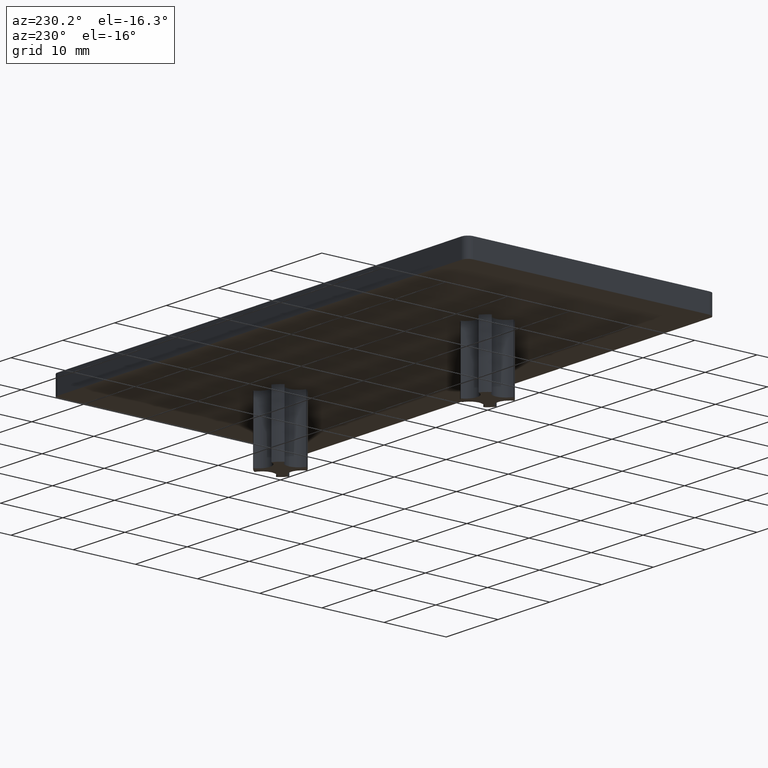
[diagram: clean part render]
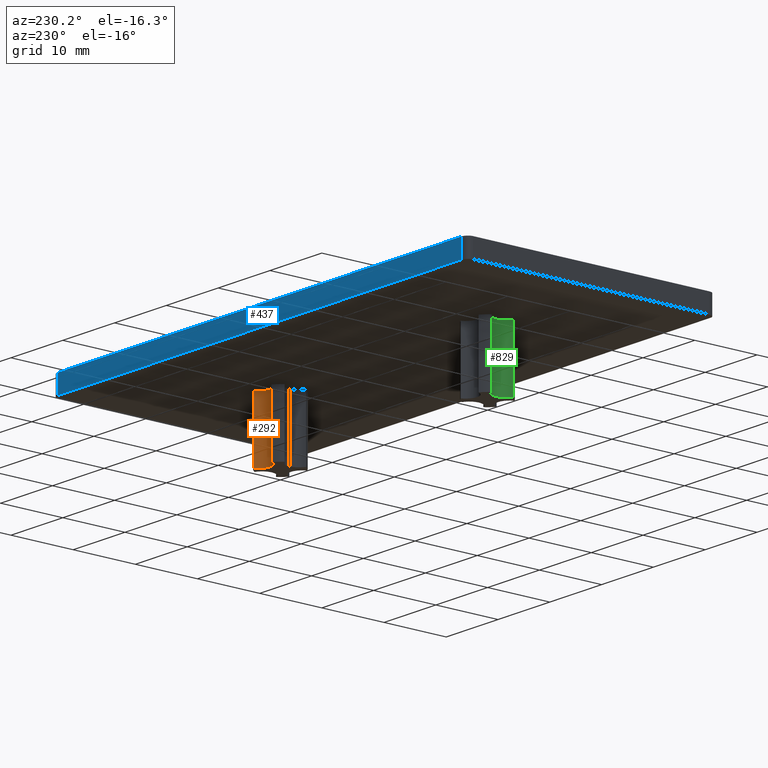
[diagram: same view with three faces highlighted in distinct colors, each labeled with its STEP entity id]
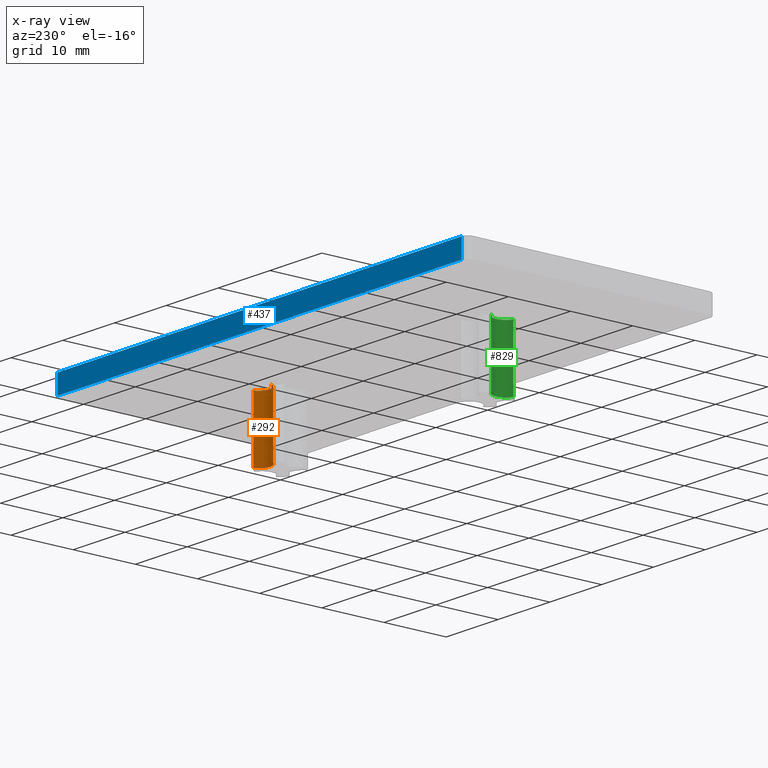
[diagram: x-ray of the same camera — body ghosted, the three highlighted faces saturated]
A machine part, auxiliary view with three faces highlighted in distinct colors.
The next image is the same camera in x-ray (body ghosted, the three faces saturated) — at least one of them is partly hidden behind the body in this view.
Their STEP definitions:

[orange] entity #292 — the highlighted cylindrical surface (edge-blend (fillet) strip) has radius 1.85 mm, axis along (0, 0, 1).
#232=CARTESIAN_POINT('',(21.734819875376125,22.894999999999996,-2.664535E-015));
#233=VERTEX_POINT('',#232);
#242=CARTESIAN_POINT('',(21.734819875376125,22.894999999999996,-10.000000000000004));
#243=VERTEX_POINT('',#242);
#251=CARTESIAN_POINT('',(21.734819875376125,22.894999999999996,-10.000000000000004));
#252=DIRECTION('',(0.0,0.0,1.0));
#253=VECTOR('',#252,10.0);
#254=LINE('',#251,#253);
#255=EDGE_CURVE('',#243,#233,#254,.T.);
#260=CARTESIAN_POINT('',(20.000000000000011,23.537572953056703,-10.000000010000004));
#261=DIRECTION('',(0.0,1.224647E-016,1.0));
#262=DIRECTION('',(1.0,0.0,0.0));
#263=AXIS2_PLACEMENT_3D('',#260,#261,#262);
#264=CYLINDRICAL_SURFACE('',#263,1.850000000000004);
#265=CARTESIAN_POINT('',(18.265180124623893,22.894999999999989,-2.664535E-015));
#266=VERTEX_POINT('',#265);
#267=CARTESIAN_POINT('',(20.000000000000011,23.537572953056703,-2.664535E-015));
#268=DIRECTION('',(0.0,-1.224647E-016,-1.0));
#269=DIRECTION('',(0.0,1.0,-1.224647E-016));
#270=AXIS2_PLACEMENT_3D('',#267,#268,#269);
#271=CIRCLE('',#270,1.850000000000004);
#272=EDGE_CURVE('',#233,#266,#271,.T.);
#273=ORIENTED_EDGE('',*,*,#272,.F.);
#274=ORIENTED_EDGE('',*,*,#255,.F.);
#275=CARTESIAN_POINT('',(18.265180124623893,22.894999999999989,-10.000000000000004));
#276=VERTEX_POINT('',#275);
#277=CARTESIAN_POINT('',(20.000000000000011,23.537572953056703,-10.000000000000004));
#278=DIRECTION('',(0.0,-1.224647E-016,-1.0));
#279=DIRECTION('',(0.0,1.0,-1.224647E-016));
#280=AXIS2_PLACEMENT_3D('',#277,#278,#279);
#281=CIRCLE('',#280,1.850000000000004);
#282=EDGE_CURVE('',#243,#276,#281,.T.);
#283=ORIENTED_EDGE('',*,*,#282,.T.);
#284=CARTESIAN_POINT('',(18.265180124623893,22.894999999999989,-10.000000000000004));
#285=DIRECTION('',(0.0,0.0,1.0));
#286=VECTOR('',#285,10.0);
#287=LINE('',#284,#286);
#288=EDGE_CURVE('',#276,#266,#287,.T.);
#289=ORIENTED_EDGE('',*,*,#288,.T.);
#290=EDGE_LOOP('',(#273,#274,#283,#289));
#291=FACE_OUTER_BOUND('',#290,.T.);
#292=ADVANCED_FACE('',(#291),#264,.F.);

[blue] entity #437 — the highlighted planar face has unit normal (0, -1, 0).
#398=CARTESIAN_POINT('',(-42.899999999999970,39.999999999999993,3.149999999999996));
#399=DIRECTION('',(0.0,-1.0,0.0));
#400=DIRECTION('',(0.0,0.0,-1.0));
#401=AXIS2_PLACEMENT_3D('',#398,#399,#400);
#402=PLANE('',#401);
#403=CARTESIAN_POINT('',(-38.999999999999972,39.999999999999993,2.999999999999995));
#404=VERTEX_POINT('',#403);
#405=CARTESIAN_POINT('',(39.000000000000014,39.999999999999993,2.999999999999995));
#406=VERTEX_POINT('',#405);
#407=CARTESIAN_POINT('',(-38.999999999999972,39.999999999999993,2.999999999999995));
#408=DIRECTION('',(1.0,0.0,0.0));
#409=VECTOR('',#408,77.999999999999986);
#410=LINE('',#407,#409);
#411=EDGE_CURVE('',#404,#406,#410,.T.);
#412=ORIENTED_EDGE('',*,*,#411,.T.);
#413=CARTESIAN_POINT('',(39.000000000000014,39.999999999999993,-4.884981E-015));
#414=VERTEX_POINT('',#413);
#415=CARTESIAN_POINT('',(39.000000000000014,39.999999999999993,2.999999999999995));
#416=DIRECTION('',(0.0,0.0,-1.0));
#417=VECTOR('',#416,3.0);
#418=LINE('',#415,#417);
#419=EDGE_CURVE('',#406,#414,#418,.T.);
#420=ORIENTED_EDGE('',*,*,#419,.T.);
#421=CARTESIAN_POINT('',(-38.999999999999972,39.999999999999993,-4.884981E-015));
#422=VERTEX_POINT('',#421);
#423=CARTESIAN_POINT('',(-38.999999999999972,39.999999999999993,-4.884981E-015));
#424=DIRECTION('',(1.0,0.0,0.0));
#425=VECTOR('',#424,77.999999999999986);
#426=LINE('',#423,#425);
#427=EDGE_CURVE('',#422,#414,#426,.T.);
#428=ORIENTED_EDGE('',*,*,#427,.F.);
#429=CARTESIAN_POINT('',(-38.999999999999972,39.999999999999993,-4.884981E-015));
#430=DIRECTION('',(0.0,0.0,1.0));
#431=VECTOR('',#430,3.0);
#432=LINE('',#429,#431);
#433=EDGE_CURVE('',#422,#404,#432,.T.);
#434=ORIENTED_EDGE('',*,*,#433,.T.);
#435=EDGE_LOOP('',(#412,#420,#428,#434));
#436=FACE_OUTER_BOUND('',#435,.T.);
#437=ADVANCED_FACE('',(#436),#402,.F.);

[green] entity #829 — the highlighted cylindrical surface (edge-blend (fillet) strip) has radius 1.85 mm, axis along (0, 0, 1).
#594=CARTESIAN_POINT('',(-22.895000009413437,21.734819859667304,-2.664535E-015));
#595=VERTEX_POINT('',#594);
#603=CARTESIAN_POINT('',(-22.895000009413437,18.265180140332681,-2.220446E-015));
#604=VERTEX_POINT('',#603);
#605=CARTESIAN_POINT('',(-23.537573004880816,19.999999999999993,-2.220446E-015));
#606=DIRECTION('',(0.0,1.224647E-016,1.0));
#607=DIRECTION('',(0.0,-1.0,1.224647E-016));
#608=AXIS2_PLACEMENT_3D('',#605,#606,#607);
#609=CIRCLE('',#608,1.850000000000003);
#610=EDGE_CURVE('',#604,#595,#609,.T.);
#786=CARTESIAN_POINT('',(-22.895000009413437,18.265180140332681,-10.000000000000002));
#787=VERTEX_POINT('',#786);
#788=CARTESIAN_POINT('',(-22.895000009413437,18.265180140332681,-10.000000000000002));
#789=DIRECTION('',(0.0,0.0,1.0));
#790=VECTOR('',#789,10.0);
#791=LINE('',#788,#790);
#792=EDGE_CURVE('',#787,#604,#791,.T.);
#805=CARTESIAN_POINT('',(-23.537573004880816,19.999999999999993,-10.000000010000004));
#806=DIRECTION('',(0.0,1.224647E-016,1.0));
#807=DIRECTION('',(-1.0,0.0,0.0));
#808=AXIS2_PLACEMENT_3D('',#805,#806,#807);
#809=CYLINDRICAL_SURFACE('',#808,1.850000000000004);
#810=ORIENTED_EDGE('',*,*,#610,.T.);
#811=CARTESIAN_POINT('',(-22.895000009413437,21.734819859667297,-10.000000000000004));
#812=VERTEX_POINT('',#811);
#813=CARTESIAN_POINT('',(-22.895000009413437,21.734819859667297,-10.000000000000004));
#814=DIRECTION('',(0.0,0.0,1.0));
#815=VECTOR('',#814,10.0);
#816=LINE('',#813,#815);
#817=EDGE_CURVE('',#812,#595,#816,.T.);
#818=ORIENTED_EDGE('',*,*,#817,.F.);
#819=CARTESIAN_POINT('',(-23.537573004880816,19.999999999999993,-10.000000000000004));
#820=DIRECTION('',(0.0,1.224647E-016,1.0));
#821=DIRECTION('',(0.0,-1.0,1.224647E-016));
#822=AXIS2_PLACEMENT_3D('',#819,#820,#821);
#823=CIRCLE('',#822,1.850000000000003);
#824=EDGE_CURVE('',#787,#812,#823,.T.);
#825=ORIENTED_EDGE('',*,*,#824,.F.);
#826=ORIENTED_EDGE('',*,*,#792,.T.);
#827=EDGE_LOOP('',(#810,#818,#825,#826));
#828=FACE_OUTER_BOUND('',#827,.T.);
#829=ADVANCED_FACE('',(#828),#809,.F.);